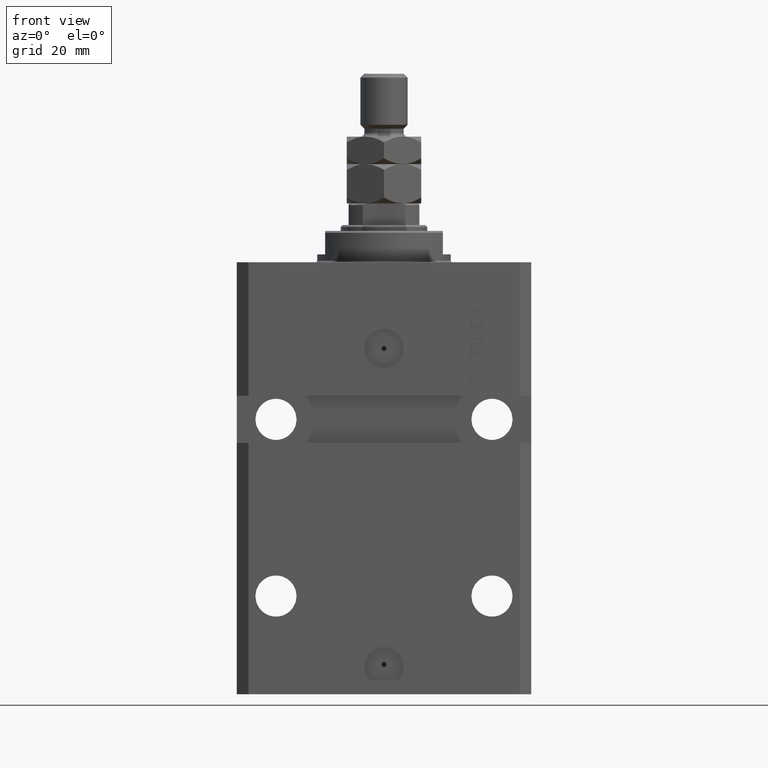
[diagram: clean part render]
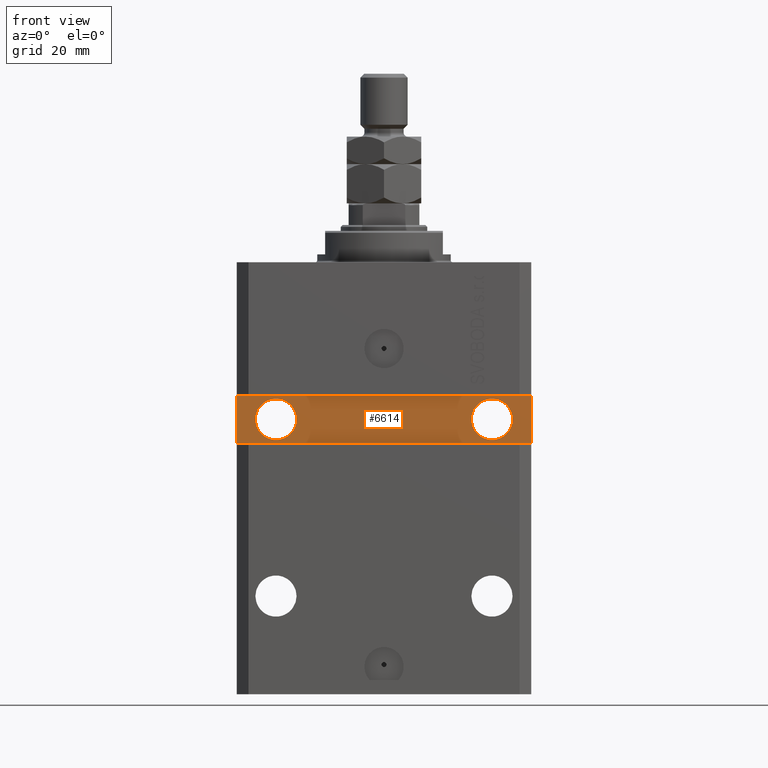
[diagram: same view with one face highlighted and labeled with its STEP entity id]
A machine part, front view. The second image highlights one B-rep face of the part: STEP entity #6614.
In plain terms, the highlighted planar face has unit normal (0, -1, 0).
Its self-contained STEP definition (entity closure, byte-faithful):
#193 = ORIENTED_EDGE ( 'NONE', *, *, #42485, .F. ) ;
#1906 = DIRECTION ( 'NONE',  ( 1.101411730780568590E-16, -1.000000000000000000, 0.000000000000000000 ) ) ;
#2071 = DIRECTION ( 'NONE',  ( 1.000000000000000000, 9.251858538542974046E-17, 0.000000000000000000 ) ) ;
#2083 = VECTOR ( 'NONE', #17952, 1000.000000000000000 ) ;
#2171 = AXIS2_PLACEMENT_3D ( 'NONE', #40028, #1906, #47211 ) ;
#2233 = CARTESIAN_POINT ( 'NONE',  ( 37.49999999999999289, -24.49999999999999289, -33.99999999999997868 ) ) ;
#2412 = DIRECTION ( 'NONE',  ( 1.000000000000000000, 9.251858538542972814E-17, -9.251858538542972814E-17 ) ) ;
#2585 = AXIS2_PLACEMENT_3D ( 'NONE', #12467, #9486, #8984 ) ;
#2611 = EDGE_CURVE ( 'NONE', #37548, #42829, #36088, .T. ) ;
#3372 = CARTESIAN_POINT ( 'NONE',  ( 32.75000000000000000, -24.49999999999999289, -40.00000000000000000 ) ) ;
#3407 = VERTEX_POINT ( 'NONE', #14414 ) ;
#3626 = AXIS2_PLACEMENT_3D ( 'NONE', #39470, #36005, #2071 ) ;
#3637 = DIRECTION ( 'NONE',  ( 0.000000000000000000, 0.000000000000000000, 1.000000000000000000 ) ) ;
#4239 = DIRECTION ( 'NONE',  ( -1.000000000000000000, -9.251858538542972814E-17, -2.775557561562891844E-16 ) ) ;
#4706 = VECTOR ( 'NONE', #3637, 1000.000000000000000 ) ;
#5223 = ORIENTED_EDGE ( 'NONE', *, *, #46323, .F. ) ;
#5677 = VERTEX_POINT ( 'NONE', #35743 ) ;
#5790 = PLANE ( 'NONE',  #3626 ) ;
#6034 = FACE_BOUND ( 'NONE', #7292, .T. ) ;
#6614 = ADVANCED_FACE ( 'NONE', ( #6034, #20880, #20399 ), #5790, .T. ) ;
#7283 = ORIENTED_EDGE ( 'NONE', *, *, #29490, .T. ) ;
#7292 = EDGE_LOOP ( 'NONE', ( #5223, #38583 ) ) ;
#8984 = DIRECTION ( 'NONE',  ( 1.000000000000000000, 0.000000000000000000, 0.000000000000000000 ) ) ;
#9486 = DIRECTION ( 'NONE',  ( 1.101411730780568590E-16, -1.000000000000000000, 0.000000000000000000 ) ) ;
#9499 = CARTESIAN_POINT ( 'NONE',  ( -37.50000000000000000, -24.50000000000000000, -46.00000000000000000 ) ) ;
#9798 = VECTOR ( 'NONE', #2412, 1000.000000000000000 ) ;
#10432 = DIRECTION ( 'NONE',  ( 1.171720209325604191E-16, -1.000000000000000000, 0.000000000000000000 ) ) ;
#12156 = LINE ( 'NONE', #42111, #33850 ) ;
#12467 = CARTESIAN_POINT ( 'NONE',  ( -27.49999999999999289, -24.50000000000000000, -40.00000000000000711 ) ) ;
#14414 = CARTESIAN_POINT ( 'NONE',  ( -22.24999999999999645, -24.50000000000000000, -40.00000000000000711 ) ) ;
#16486 = ORIENTED_EDGE ( 'NONE', *, *, #17551, .F. ) ;
#17551 = EDGE_CURVE ( 'NONE', #3407, #35017, #27845, .T. ) ;
#17861 = CARTESIAN_POINT ( 'NONE',  ( 37.49999999999999289, -24.49999999999999289, -46.00000000000000711 ) ) ;
#17952 = DIRECTION ( 'NONE',  ( 0.000000000000000000, 0.000000000000000000, -1.000000000000000000 ) ) ;
#20399 = FACE_OUTER_BOUND ( 'NONE', #40033, .T. ) ;
#20880 = FACE_BOUND ( 'NONE', #21100, .T. ) ;
#21100 = EDGE_LOOP ( 'NONE', ( #16486, #193 ) ) ;
#21227 = CARTESIAN_POINT ( 'NONE',  ( -37.50000000000000000, -24.50000000000000000, -46.00000000000000000 ) ) ;
#21910 = CARTESIAN_POINT ( 'NONE',  ( -37.50000000000000000, -24.50000000000000000, -34.00000000000000000 ) ) ;
#21965 = AXIS2_PLACEMENT_3D ( 'NONE', #45261, #41810, #39300 ) ;
#22053 = DIRECTION ( 'NONE',  ( 1.000000000000000000, 0.000000000000000000, 0.000000000000000000 ) ) ;
#25710 = AXIS2_PLACEMENT_3D ( 'NONE', #44557, #10432, #22053 ) ;
#27607 = EDGE_CURVE ( 'NONE', #32366, #28256, #45525, .T. ) ;
#27845 = CIRCLE ( 'NONE', #2585, 5.249999999999997335 ) ;
#28118 = ORIENTED_EDGE ( 'NONE', *, *, #2611, .T. ) ;
#28256 = VERTEX_POINT ( 'NONE', #3372 ) ;
#29080 = LINE ( 'NONE', #21910, #2083 ) ;
#29124 = CARTESIAN_POINT ( 'NONE',  ( 37.49999999999999289, -24.49999999999999289, -46.00000000000000711 ) ) ;
#29490 = EDGE_CURVE ( 'NONE', #5677, #37548, #29080, .T. ) ;
#32366 = VERTEX_POINT ( 'NONE', #37862 ) ;
#33564 = CARTESIAN_POINT ( 'NONE',  ( -32.74999999999999289, -24.50000000000000000, -40.00000000000000711 ) ) ;
#33850 = VECTOR ( 'NONE', #4239, 1000.000000000000000 ) ;
#35017 = VERTEX_POINT ( 'NONE', #33564 ) ;
#35743 = CARTESIAN_POINT ( 'NONE',  ( -37.50000000000000000, -24.50000000000000000, -34.00000000000000000 ) ) ;
#36005 = DIRECTION ( 'NONE',  ( 9.251858538542974046E-17, -1.000000000000000000, 0.000000000000000000 ) ) ;
#36088 = LINE ( 'NONE', #21227, #9798 ) ;
#36818 = LINE ( 'NONE', #29124, #4706 ) ;
#37020 = EDGE_CURVE ( 'NONE', #42829, #48314, #36818, .T. ) ;
#37536 = ORIENTED_EDGE ( 'NONE', *, *, #37020, .T. ) ;
#37548 = VERTEX_POINT ( 'NONE', #9499 ) ;
#37862 = CARTESIAN_POINT ( 'NONE',  ( 22.25000000000001421, -24.49999999999999289, -40.00000000000000000 ) ) ;
#38269 = ORIENTED_EDGE ( 'NONE', *, *, #43586, .T. ) ;
#38540 = CIRCLE ( 'NONE', #21965, 5.249999999999994671 ) ;
#38583 = ORIENTED_EDGE ( 'NONE', *, *, #27607, .F. ) ;
#39300 = DIRECTION ( 'NONE',  ( 1.000000000000000000, 0.000000000000000000, 0.000000000000000000 ) ) ;
#39470 = CARTESIAN_POINT ( 'NONE',  ( 2.191435984341281325E-15, -24.49999999999999645, 0.000000000000000000 ) ) ;
#40028 = CARTESIAN_POINT ( 'NONE',  ( -27.49999999999999289, -24.50000000000000000, -40.00000000000000711 ) ) ;
#40033 = EDGE_LOOP ( 'NONE', ( #28118, #37536, #38269, #7283 ) ) ;
#41810 = DIRECTION ( 'NONE',  ( 1.171720209325604191E-16, -1.000000000000000000, 0.000000000000000000 ) ) ;
#42111 = CARTESIAN_POINT ( 'NONE',  ( 37.49999999999999289, -24.49999999999999289, -33.99999999999997868 ) ) ;
#42485 = EDGE_CURVE ( 'NONE', #35017, #3407, #48034, .T. ) ;
#42829 = VERTEX_POINT ( 'NONE', #17861 ) ;
#43586 = EDGE_CURVE ( 'NONE', #48314, #5677, #12156, .T. ) ;
#44557 = CARTESIAN_POINT ( 'NONE',  ( 27.50000000000000711, -24.49999999999999289, -40.00000000000000000 ) ) ;
#45261 = CARTESIAN_POINT ( 'NONE',  ( 27.50000000000000711, -24.49999999999999289, -40.00000000000000000 ) ) ;
#45525 = CIRCLE ( 'NONE', #25710, 5.249999999999994671 ) ;
#46323 = EDGE_CURVE ( 'NONE', #28256, #32366, #38540, .T. ) ;
#47211 = DIRECTION ( 'NONE',  ( 1.000000000000000000, 0.000000000000000000, 0.000000000000000000 ) ) ;
#48034 = CIRCLE ( 'NONE', #2171, 5.249999999999997335 ) ;
#48314 = VERTEX_POINT ( 'NONE', #2233 ) ;